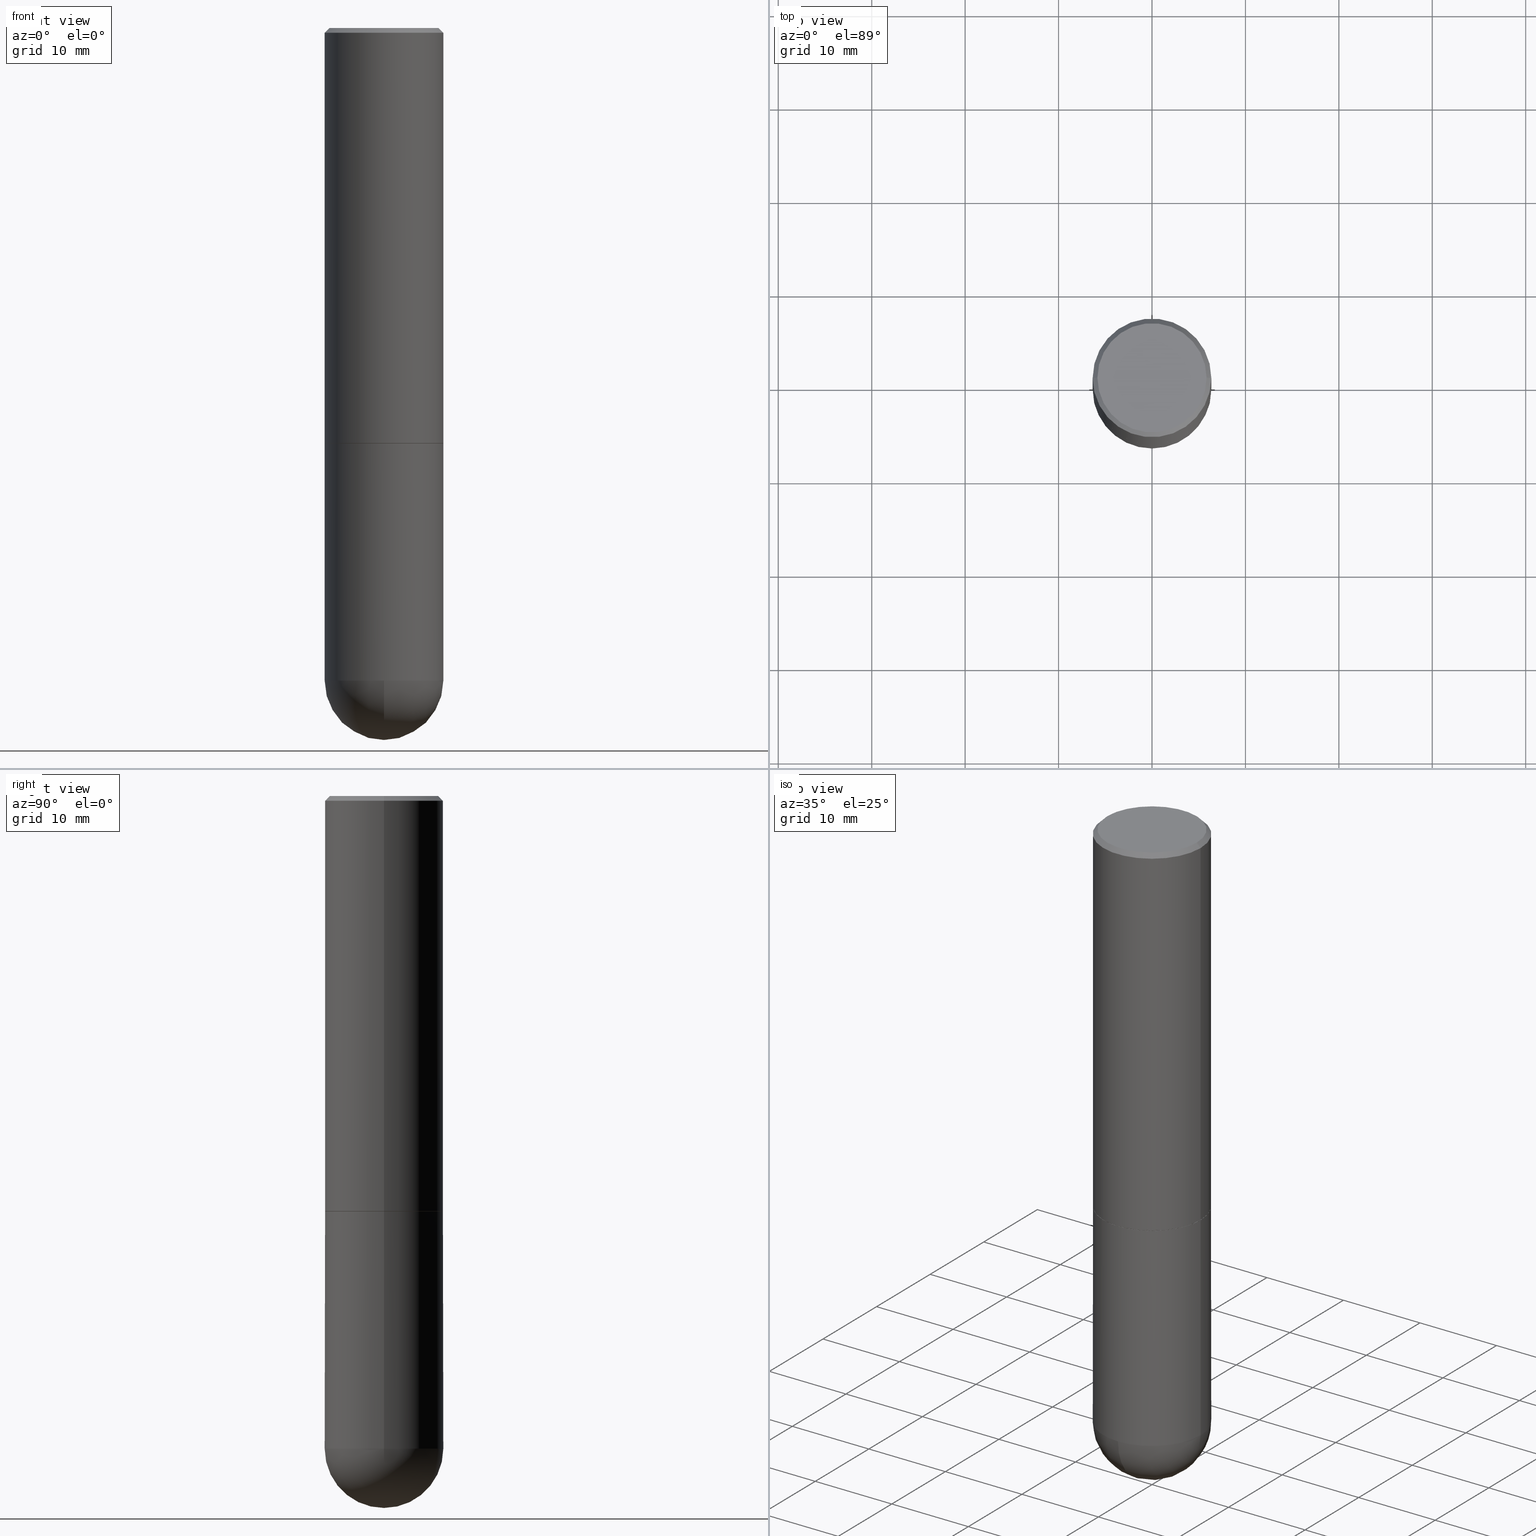
[diagram: canonical four-view strip — front | top / right | iso, engineering-drawing reading convention]
A machine part, canonical four-view strip (front | top / right | iso — engineering-drawing reading convention). The complete STEP part file that produces these views, byte-faithful:
ISO-10303-21;
HEADER;
FILE_DESCRIPTION (( 'STEP AP203' ),
    '1' );
FILE_NAME ('34924.STEP',
    '2024-02-21T18:26:37',
    ( '' ),
    ( '' ),
    'SwSTEP 2.0',
    'SolidWorks 2023',
    '' );
FILE_SCHEMA (( 'CONFIG_CONTROL_DESIGN' ));
ENDSEC;

DATA;
#1 = DIRECTION ( 'NONE',  ( -2.438088387897960049E-29, 3.491481338843145188E-15, 1.000000000000000000 ) ) ;
#2 = ORIENTED_EDGE ( 'NONE', *, *, #131, .T. ) ;
#3 = CALENDAR_DATE ( 2024, 21, 2 ) ;
#4 = CARTESIAN_POINT ( 'NONE',  ( 4.279570410823989044E-29, -6.110092342975505460E-15, -1.750000000000000222 ) ) ;
#5 = ORIENTED_EDGE ( 'NONE', *, *, #95, .T. ) ;
#6 = ADVANCED_BREP_SHAPE_REPRESENTATION ( '34924', ( #108, #379, #38 ), #175 ) ;
#7 = DIRECTION ( 'NONE',  ( 1.000000000000000000, -6.982962677686262766E-15, 0.000000000000000000 ) ) ;
#8 = ADVANCED_FACE ( 'NONE', ( #250 ), #358, .T. ) ;
#9 = CARTESIAN_POINT ( 'NONE',  ( 6.725039217009124520E-29, -9.601573681818649859E-15, -2.750000000000000000 ) ) ;
#10 = DIRECTION ( 'NONE',  ( -2.445468806185136877E-29, 3.491481338843145188E-15, 1.000000000000000000 ) ) ;
#11 = AXIS2_PLACEMENT_3D ( 'NONE', #244, #363, #225 ) ;
#12 = CARTESIAN_POINT ( 'NONE',  ( 6.393919439095240515E-29, -1.007575604995870173E-14, -2.750000000000000444 ) ) ;
#13 = ADVANCED_FACE ( 'NONE', ( #371 ), #90, .T. ) ;
#14 = EDGE_LOOP ( 'NONE', ( #30, #275, #378, #273 ) ) ;
#15 = PERSON_AND_ORGANIZATION_ROLE ( 'creator' ) ;
#16 = PRODUCT_DEFINITION_FORMATION_WITH_SPECIFIED_SOURCE ( 'ANY', '', #185, .NOT_KNOWN. ) ;
#17 = CIRCLE ( 'NONE', #45, 0.2500000000000000000 ) ;
#18 = ORIENTED_EDGE ( 'NONE', *, *, #215, .T. ) ;
#19 = CYLINDRICAL_SURFACE ( 'NONE', #381, 0.2500000000000000000 ) ;
#20 = EDGE_LOOP ( 'NONE', ( #112, #327, #282, #312 ) ) ;
#21 = CARTESIAN_POINT ( 'NONE',  ( 1.745740669421632745E-15, 0.2499999999999902300, -2.750000000000000888 ) ) ;
#22 = DIRECTION ( 'NONE',  ( 2.438088387897960049E-29, -3.491481338843145188E-15, -1.000000000000000000 ) ) ;
#23 = VERTEX_POINT ( 'NONE', #92 ) ;
#24 = VERTEX_POINT ( 'NONE', #149 ) ;
#25 = DIRECTION ( 'NONE',  ( 2.445468806185136597E-29, -3.491481338843145583E-15, -1.000000000000000000 ) ) ;
#26 = VERTEX_POINT ( 'NONE', #218 ) ;
#27 = EDGE_LOOP ( 'NONE', ( #5, #310, #278, #186 ) ) ;
#28 = COORDINATED_UNIVERSAL_TIME_OFFSET ( 5, 0, .BEHIND. ) ;
#29 = CARTESIAN_POINT ( 'NONE',  ( 4.277124942017804562E-29, -6.106600861636661664E-15, -1.749000000000000110 ) ) ;
#30 = ORIENTED_EDGE ( 'NONE', *, *, #341, .F. ) ;
#31 = AXIS2_PLACEMENT_3D ( 'NONE', #391, #107, #360 ) ;
#32 = DIRECTION ( 'NONE',  ( -2.445468806185136597E-29, 3.491481338843145583E-15, 1.000000000000000000 ) ) ;
#33 = PERSON_AND_ORGANIZATION ( #322, #314 ) ;
#34 = DIRECTION ( 'NONE',  ( 1.000000000000000000, 0.000000000000000000, 0.000000000000000000 ) ) ;
#35 = DIRECTION ( 'NONE',  ( 1.000000000000000000, -6.982962677686265922E-15, 4.879110437680772635E-29 ) ) ;
#36 = CARTESIAN_POINT ( 'NONE',  ( 0.2500000000000000000, -1.784954126219746189E-15, -0.02000000000000005593 ) ) ;
#37 = EDGE_CURVE ( 'NONE', #24, #26, #257, .T. ) ;
#38 = AXIS2_PLACEMENT_3D ( 'NONE', #320, #187, #34 ) ;
#39 = PERSON_AND_ORGANIZATION_ROLE ( 'classification_officer' ) ;
#40 = CIRCLE ( 'NONE', #135, 0.2489999999999999991 ) ;
#41 = DIRECTION ( 'NONE',  ( 1.000000000000000000, -6.982962677686266711E-15, 0.000000000000000000 ) ) ;
#42 = CALENDAR_DATE ( 2024, 21, 2 ) ;
#43 = EDGE_CURVE ( 'NONE', #298, #245, #409, .T. ) ;
#44 = AXIS2_PLACEMENT_3D ( 'NONE', #349, #398, #86 ) ;
#45 = AXIS2_PLACEMENT_3D ( 'NONE', #119, #144, #109 ) ;
#46 = FACE_OUTER_BOUND ( 'NONE', #255, .T. ) ;
#47 = COORDINATED_UNIVERSAL_TIME_OFFSET ( 5, 0, .BEHIND. ) ;
#48 = DIRECTION ( 'NONE',  ( -2.445468806185136877E-29, 3.491481338843145188E-15, 1.000000000000000000 ) ) ;
#49 = VECTOR ( 'NONE', #155, 39.37007874015748143 ) ;
#50 = ORIENTED_EDGE ( 'NONE', *, *, #74, .T. ) ;
#51 = ORIENTED_EDGE ( 'NONE', *, *, #406, .T. ) ;
#52 = LINE ( 'NONE', #308, #325 ) ;
#53 = LOCAL_TIME ( 13, 26, 37.00000000000000000, #288 ) ;
#54 = ORIENTED_EDGE ( 'NONE', *, *, #341, .T. ) ;
#55 = ORIENTED_EDGE ( 'NONE', *, *, #43, .F. ) ;
#56 = EDGE_CURVE ( 'NONE', #207, #23, #124, .T. ) ;
#57 = DIRECTION ( 'NONE',  ( -1.000000000000000000, 6.982962677686265922E-15, -4.876176775795935793E-29 ) ) ;
#58 = ORIENTED_EDGE ( 'NONE', *, *, #151, .T. ) ;
#59 = DIRECTION ( 'NONE',  ( -2.445468806185136597E-29, 3.491481338843145583E-15, 1.000000000000000000 ) ) ;
#60 = CIRCLE ( 'NONE', #295, 0.2500000000000000000 ) ;
#61 = DIRECTION ( 'NONE',  ( 1.000000000000000000, -6.982962677686266711E-15, 0.000000000000000000 ) ) ;
#62 = PERSON_AND_ORGANIZATION ( #322, #314 ) ;
#63 = LENGTH_MEASURE_WITH_UNIT ( LENGTH_MEASURE( 0.02539999999999999897 ), #263 );
#64 = DIRECTION ( 'NONE',  ( -2.445468806185136597E-29, 3.491481338843145583E-15, 1.000000000000000000 ) ) ;
#65 = EDGE_CURVE ( 'NONE', #342, #93, #230, .T. ) ;
#66 = PLANE ( 'NONE',  #402 ) ;
#67 = PERSON_AND_ORGANIZATION_ROLE ( 'creator' ) ;
#68 = AXIS2_PLACEMENT_3D ( 'NONE', #249, #211, #237 ) ;
#69 = DATE_TIME_ROLE ( 'creation_date' ) ;
#70 = APPROVAL ( #130, 'UNSPECIFIED' ) ;
#71 = DIRECTION ( 'NONE',  ( -2.445468806185136597E-29, 3.491481338843145583E-15, 1.000000000000000000 ) ) ;
#72 = LOCAL_TIME ( 13, 26, 37.00000000000000000, #251 ) ;
#73 = AXIS2_PLACEMENT_3D ( 'NONE', #192, #32, #35 ) ;
#74 = EDGE_CURVE ( 'NONE', #188, #180, #223, .T. ) ;
#75 = ORIENTED_EDGE ( 'NONE', *, *, #330, .T. ) ;
#76 = CARTESIAN_POINT ( 'NONE',  ( -0.2500000000000000000, 1.675911042644703577E-15, -0.02000000000000005593 ) ) ;
#77 = CC_DESIGN_DATE_AND_TIME_ASSIGNMENT ( #99, #194, ( #196 ) ) ;
#78 = ORIENTED_EDGE ( 'NONE', *, *, #246, .F. ) ;
#79 = FACE_OUTER_BOUND ( 'NONE', #309, .T. ) ;
#80 = CARTESIAN_POINT ( 'NONE',  ( 0.000000000000000000, 0.000000000000000000, 0.000000000000000000 ) ) ;
#81 = LINE ( 'NONE', #328, #271 ) ;
#82 = CIRCLE ( 'NONE', #170, 0.2300000000000001488 ) ;
#83 = ADVANCED_FACE ( 'NONE', ( #346 ), #158, .T. ) ;
#84 = APPLICATION_CONTEXT ( 'configuration controlled 3d designs of mechanical parts and assemblies' ) ;
#85 = CARTESIAN_POINT ( 'NONE',  ( 6.393919439095240515E-29, -1.007575604995870173E-14, -2.750000000000000444 ) ) ;
#86 = DIRECTION ( 'NONE',  ( 1.000000000000000000, -6.982962677686266711E-15, 0.000000000000000000 ) ) ;
#87 = CARTESIAN_POINT ( 'NONE',  ( 0.2500000000000002220, -7.852341531058230708E-15, -1.749000000000000110 ) ) ;
#88 = ORIENTED_EDGE ( 'NONE', *, *, #410, .T. ) ;
#89 = VECTOR ( 'NONE', #118, 39.37007874015748143 ) ;
#90 = CYLINDRICAL_SURFACE ( 'NONE', #401, 0.2500000000000001110 ) ;
#91 = DATE_AND_TIME ( #372, #72 ) ;
#92 = CARTESIAN_POINT ( 'NONE',  ( 0.2300000000000001488, -1.681434332853599997E-15, -1.365923996832016731E-16 ) ) ;
#93 = VERTEX_POINT ( 'NONE', #203 ) ;
#94 = VECTOR ( 'NONE', #10, 39.37007874015748143 ) ;
#95 = EDGE_CURVE ( 'NONE', #245, #298, #40, .T. ) ;
#96 = DIRECTION ( 'NONE',  ( 1.000000000000000000, -6.982962677686267499E-15, 4.876176775795936353E-29 ) ) ;
#97 = PERSON_AND_ORGANIZATION ( #322, #314 ) ;
#98 = DIRECTION ( 'NONE',  ( 2.445468806185136597E-29, -3.491481338843145583E-15, -1.000000000000000000 ) ) ;
#99 = DATE_AND_TIME ( #318, #262 ) ;
#100 = CARTESIAN_POINT ( 'NONE',  ( 0.000000000000000000, 0.000000000000000000, 0.000000000000000000 ) ) ;
#101 = DIRECTION ( 'NONE',  ( -1.000000000000000000, 6.982962677686266711E-15, 0.000000000000000000 ) ) ;
#102 = CARTESIAN_POINT ( 'NONE',  ( 0.2500000000000000000, -1.784954126219746189E-15, -0.02000000000000005593 ) ) ;
#103 = ADVANCED_FACE ( 'NONE', ( #46 ), #236, .T. ) ;
#104 = CARTESIAN_POINT ( 'NONE',  ( 4.279570410823989605E-29, -6.110092342975506249E-15, -1.750000000000000444 ) ) ;
#105 = EDGE_LOOP ( 'NONE', ( #117, #55 ) ) ;
#106 = CARTESIAN_POINT ( 'NONE',  ( 4.890937612370287172E-31, -6.982962677686310098E-17, -0.02000000000000005593 ) ) ;
#107 = DIRECTION ( 'NONE',  ( -2.445468806185136597E-29, 3.491481338843145583E-15, 1.000000000000000000 ) ) ;
#108 = MANIFOLD_SOLID_BREP ( 'Body-Move/Copy2[1]', #315 ) ;
#109 = DIRECTION ( 'NONE',  ( 1.000000000000000000, -6.982962677686266711E-15, 0.000000000000000000 ) ) ;
#110 = DIRECTION ( 'NONE',  ( 6.982962677686265922E-15, 1.000000000000000000, -4.370956789862818783E-15 ) ) ;
#111 = DIRECTION ( 'NONE',  ( 1.000000000000000000, -6.982962677686265922E-15, 4.883557194083112340E-29 ) ) ;
#112 = ORIENTED_EDGE ( 'NONE', *, *, #292, .F. ) ;
#113 = AXIS2_PLACEMENT_3D ( 'NONE', #365, #22, #114 ) ;
#114 = DIRECTION ( 'NONE',  ( -1.000000000000000000, 6.982962677686265922E-15, -4.876176775795935793E-29 ) ) ;
#115 = VECTOR ( 'NONE', #286, 39.37007874015748143 ) ;
#116 = AXIS2_PLACEMENT_3D ( 'NONE', #302, #248, #208 ) ;
#117 = ORIENTED_EDGE ( 'NONE', *, *, #95, .F. ) ;
#118 = DIRECTION ( 'NONE',  ( -0.7071067811865112684, 7.493145998870223209E-15, 0.7071067811865837660 ) ) ;
#119 = CARTESIAN_POINT ( 'NONE',  ( 4.279570410823989044E-29, -6.110092342975505460E-15, -1.750000000000000222 ) ) ;
#120 = ORIENTED_EDGE ( 'NONE', *, *, #351, .F. ) ;
#121 = ADVANCED_FACE ( 'NONE', ( #79 ), #189, .T. ) ;
#122 = CC_DESIGN_APPROVAL ( #70, ( #196 ) ) ;
#123 = CARTESIAN_POINT ( 'NONE',  ( 4.279570410823989605E-29, -6.110092342975506249E-15, -1.750000000000000444 ) ) ;
#124 = CIRCLE ( 'NONE', #73, 0.2300000000000001488 ) ;
#125 = PERSON_AND_ORGANIZATION_ROLE ( 'design_owner' ) ;
#126 = ORIENTED_EDGE ( 'NONE', *, *, #179, .F. ) ;
#127 = EDGE_CURVE ( 'NONE', #24, #93, #253, .T. ) ;
#128 = SHAPE_DEFINITION_REPRESENTATION ( #224, #6 ) ;
#129 = DIRECTION ( 'NONE',  ( -2.445468806185136597E-29, 3.491481338843145583E-15, 1.000000000000000000 ) ) ;
#130 = APPROVAL_STATUS ( 'not_yet_approved' ) ;
#131 = EDGE_CURVE ( 'NONE', #23, #407, #193, .T. ) ;
#132 = DIRECTION ( 'NONE',  ( -2.445468806185136597E-29, 3.491481338843145583E-15, 1.000000000000000000 ) ) ;
#133 = AXIS2_PLACEMENT_3D ( 'NONE', #261, #229, #7 ) ;
#134 = LOCAL_TIME ( 13, 26, 37.00000000000000000, #28 ) ;
#135 = AXIS2_PLACEMENT_3D ( 'NONE', #104, #303, #388 ) ;
#136 = PRODUCT_DEFINITION ( 'UNKNOWN', '', #16, #376 ) ;
#137 = APPROVAL_DATE_TIME ( #294, #326 ) ;
#138 = CONICAL_SURFACE ( 'NONE', #369, 0.2500000000000000000, 0.7853981633974467247 ) ;
#139 = EDGE_LOOP ( 'NONE', ( #146, #204 ) ) ;
#140 = EDGE_CURVE ( 'NONE', #23, #207, #82, .T. ) ;
#141 = DIRECTION ( 'NONE',  ( 6.982962677686265922E-15, 1.000000000000000000, -4.370956789862818783E-15 ) ) ;
#142 = EDGE_LOOP ( 'NONE', ( #78, #50, #88, #200 ) ) ;
#143 = CARTESIAN_POINT ( 'NONE',  ( -0.2489999999999999991, -4.340840930932856792E-15, -1.750000000000000444 ) ) ;
#144 = DIRECTION ( 'NONE',  ( -2.445468806185136597E-29, 3.491481338843145583E-15, 1.000000000000000000 ) ) ;
#145 = AXIS2_PLACEMENT_3D ( 'NONE', #221, #59, #289 ) ;
#146 = ORIENTED_EDGE ( 'NONE', *, *, #56, .T. ) ;
#147 = APPROVAL_ROLE ( '' ) ;
#148 = ADVANCED_FACE ( 'NONE', ( #227 ), #66, .F. ) ;
#149 = CARTESIAN_POINT ( 'NONE',  ( -0.2500000000000000000, -6.079476172996828773E-15, -2.750000000000000000 ) ) ;
#150 = CIRCLE ( 'NONE', #386, 0.2500000000000000000 ) ;
#151 = EDGE_CURVE ( 'NONE', #180, #188, #243, .T. ) ;
#152 = DIRECTION ( 'NONE',  ( -1.000000000000000000, 7.105427357601001070E-15, -4.926315508542082329E-29 ) ) ;
#153 = APPROVAL_ROLE ( '' ) ;
#154 = CARTESIAN_POINT ( 'NONE',  ( 4.277124942017804562E-29, -6.106600861636661664E-15, -1.749000000000000110 ) ) ;
#155 = DIRECTION ( 'NONE',  ( 0.7071067811865464625, -7.319954787623252890E-15, -0.7071067811865486830 ) ) ;
#156 =( NAMED_UNIT ( * ) SI_UNIT ( $, .STERADIAN. ) SOLID_ANGLE_UNIT ( ) );
#157 = CC_DESIGN_SECURITY_CLASSIFICATION ( #196, ( #16 ) ) ;
#158 = CYLINDRICAL_SURFACE ( 'NONE', #220, 0.2500000000000000000 ) ;
#159 = APPROVAL ( #256, 'UNSPECIFIED' ) ;
#160 = SPHERICAL_SURFACE ( 'NONE', #161, 0.2500000000000001110 ) ;
#161 = AXIS2_PLACEMENT_3D ( 'NONE', #12, #234, #141 ) ;
#162 = ADVANCED_FACE ( 'NONE', ( #411 ), #160, .T. ) ;
#163 = DIRECTION ( 'NONE',  ( -2.445468806185136877E-29, 3.491481338843145188E-15, 1.000000000000000000 ) ) ;
#164 = DIMENSIONAL_EXPONENTS ( 1.000000000000000000, 0.000000000000000000, 0.000000000000000000, 0.000000000000000000, 0.000000000000000000, 0.000000000000000000, 0.000000000000000000 ) ;
#165 = CARTESIAN_POINT ( 'NONE',  ( -0.2489999999999999991, -4.335542476584633601E-15, -1.750000000000000444 ) ) ;
#166 = EDGE_LOOP ( 'NONE', ( #58, #279, #374, #364 ) ) ;
#167 = DIRECTION ( 'NONE',  ( -1.000000000000000000, 6.982962677686265922E-15, -4.883557194083113462E-29 ) ) ;
#168 = APPROVAL_PERSON_ORGANIZATION ( #181, #159, #147 ) ;
#169 = EDGE_CURVE ( 'NONE', #304, #407, #324, .T. ) ;
#170 = AXIS2_PLACEMENT_3D ( 'NONE', #383, #291, #265 ) ;
#171 = ORIENTED_EDGE ( 'NONE', *, *, #276, .F. ) ;
#172 = EDGE_LOOP ( 'NONE', ( #18, #354, #222, #171, #336 ) ) ;
#173 = APPROVAL_DATE_TIME ( #91, #159 ) ;
#174 = CARTESIAN_POINT ( 'NONE',  ( 0.2500000000000001110, -1.745740669421567664E-15, 1.219044193948984649E-29 ) ) ;
#175 =( GEOMETRIC_REPRESENTATION_CONTEXT ( 3 ) GLOBAL_UNCERTAINTY_ASSIGNED_CONTEXT ( ( #182 ) ) GLOBAL_UNIT_ASSIGNED_CONTEXT ( ( #217, #191, #156 ) ) REPRESENTATION_CONTEXT ( 'NONE', 'WORKASPACE' ) );
#176 = APPROVAL_STATUS ( 'not_yet_approved' ) ;
#177 = CARTESIAN_POINT ( 'NONE',  ( -0.2500000000000000000, 1.675911042644703577E-15, -0.02000000000000005593 ) ) ;
#178 = CARTESIAN_POINT ( 'NONE',  ( -0.2500000000000002220, -1.311858404806509058E-15, -1.749000000000000110 ) ) ;
#179 = EDGE_CURVE ( 'NONE', #26, #183, #17, .T. ) ;
#180 = VERTEX_POINT ( 'NONE', #87 ) ;
#181 = PERSON_AND_ORGANIZATION ( #322, #314 ) ;
#182 = UNCERTAINTY_MEASURE_WITH_UNIT (LENGTH_MEASURE( 1.000000000000000082E-05 ), #217, 'distance_accuracy_value', 'NONE');
#183 = VERTEX_POINT ( 'NONE', #239 ) ;
#184 = CC_DESIGN_PERSON_AND_ORGANIZATION_ASSIGNMENT ( #33, #39, ( #196 ) ) ;
#185 = PRODUCT ( '34924', '34924', '', ( #373 ) ) ;
#186 = ORIENTED_EDGE ( 'NONE', *, *, #366, .F. ) ;
#187 = DIRECTION ( 'NONE',  ( 0.000000000000000000, 0.000000000000000000, 1.000000000000000000 ) ) ;
#188 = VERTEX_POINT ( 'NONE', #178 ) ;
#189 = CONICAL_SURFACE ( 'NONE', #240, 0.2500000000000000000, 0.7853981633974467247 ) ;
#190 = SECURITY_CLASSIFICATION_LEVEL ( 'unclassified' ) ;
#191 =( NAMED_UNIT ( * ) PLANE_ANGLE_UNIT ( ) SI_UNIT ( $, .RADIAN. ) );
#192 = CARTESIAN_POINT ( 'NONE',  ( 3.340324525872703422E-45, -4.769098145217431040E-31, -1.365923996832131609E-16 ) ) ;
#193 = LINE ( 'NONE', #36, #49 ) ;
#194 = DATE_TIME_ROLE ( 'classification_date' ) ;
#195 = CARTESIAN_POINT ( 'NONE',  ( 0.2500000000000000000, -1.745740669421566678E-15, 1.219044193948983948E-29 ) ) ;
#196 = SECURITY_CLASSIFICATION ( '', '', #190 ) ;
#197 = AXIS2_PLACEMENT_3D ( 'NONE', #154, #264, #226 ) ;
#198 = PRODUCT_RELATED_PRODUCT_CATEGORY ( 'detail', '', ( #185 ) ) ;
#199 = AXIS2_PLACEMENT_3D ( 'NONE', #394, #167, #110 ) ;
#200 = ORIENTED_EDGE ( 'NONE', *, *, #169, .F. ) ;
#201 = CARTESIAN_POINT ( 'NONE',  ( 7.015976219256266741E-29, -1.093331829968014633E-14, -3.000000000000000888 ) ) ;
#202 = CARTESIAN_POINT ( 'NONE',  ( 0.2489999999999999991, -7.848850049719386123E-15, -1.750000000000000444 ) ) ;
#203 = CARTESIAN_POINT ( 'NONE',  ( -1.776356839400184989E-15, -0.2500000000000098810, -2.749999999999998668 ) ) ;
#204 = ORIENTED_EDGE ( 'NONE', *, *, #140, .T. ) ;
#205 = CIRCLE ( 'NONE', #31, 0.2500000000000000000 ) ;
#206 = DIRECTION ( 'NONE',  ( 0.7071067811865112684, -2.468850131081876830E-15, 0.7071067811865837660 ) ) ;
#207 = VERTEX_POINT ( 'NONE', #396 ) ;
#208 = DIRECTION ( 'NONE',  ( 1.000000000000000000, -6.982962677686262766E-15, 0.000000000000000000 ) ) ;
#209 = CC_DESIGN_PERSON_AND_ORGANIZATION_ASSIGNMENT ( #284, #125, ( #185 ) ) ;
#210 = ORIENTED_EDGE ( 'NONE', *, *, #276, .T. ) ;
#211 = DIRECTION ( 'NONE',  ( -2.445468806185136597E-29, 3.491481338843145583E-15, 1.000000000000000000 ) ) ;
#212 = ORIENTED_EDGE ( 'NONE', *, *, #290, .T. ) ;
#213 = CARTESIAN_POINT ( 'NONE',  ( 1.606081415867842251E-15, 0.2300000000000001488, -8.713369077755306147E-16 ) ) ;
#214 = CARTESIAN_POINT ( 'NONE',  ( 0.000000000000000000, 0.000000000000000000, 0.000000000000000000 ) ) ;
#215 = EDGE_CURVE ( 'NONE', #357, #24, #277, .T. ) ;
#216 = FACE_OUTER_BOUND ( 'NONE', #142, .T. ) ;
#217 =( CONVERSION_BASED_UNIT ( 'INCH', #63 ) LENGTH_UNIT ( ) NAMED_UNIT ( #164 ) );
#218 = CARTESIAN_POINT ( 'NONE',  ( -0.2500000000000000000, -6.079476172996827195E-15, -1.750000000000000222 ) ) ;
#219 = COORDINATED_UNIVERSAL_TIME_OFFSET ( 5, 0, .BEHIND. ) ;
#220 = AXIS2_PLACEMENT_3D ( 'NONE', #100, #71, #387 ) ;
#221 = CARTESIAN_POINT ( 'NONE',  ( 0.000000000000000000, 0.000000000000000000, 0.000000000000000000 ) ) ;
#222 = ORIENTED_EDGE ( 'NONE', *, *, #330, .F. ) ;
#223 = CIRCLE ( 'NONE', #197, 0.2500000000000002220 ) ;
#224 = PRODUCT_DEFINITION_SHAPE ( 'NONE', 'NONE',  #136 ) ;
#225 = DIRECTION ( 'NONE',  ( 1.000000000000000000, -6.982962677686266711E-15, 0.000000000000000000 ) ) ;
#226 = DIRECTION ( 'NONE',  ( 1.000000000000000000, -6.982962677686268288E-15, 0.000000000000000000 ) ) ;
#227 = FACE_OUTER_BOUND ( 'NONE', #105, .T. ) ;
#228 = APPROVAL_DATE_TIME ( #343, #70 ) ;
#229 = DIRECTION ( 'NONE',  ( -2.445468806185136597E-29, 3.491481338843145583E-15, 1.000000000000000000 ) ) ;
#230 = CIRCLE ( 'NONE', #313, 0.2500000000000001110 ) ;
#231 = EDGE_CURVE ( 'NONE', #207, #304, #352, .T. ) ;
#232 = LINE ( 'NONE', #174, #368 ) ;
#233 = CC_DESIGN_APPROVAL ( #159, ( #16 ) ) ;
#234 = DIRECTION ( 'NONE',  ( -1.000000000000000000, 6.982962677686265922E-15, -4.883557194083113462E-29 ) ) ;
#235 = ORIENTED_EDGE ( 'NONE', *, *, #65, .F. ) ;
#236 = SPHERICAL_SURFACE ( 'NONE', #199, 0.2500000000000001110 ) ;
#237 = DIRECTION ( 'NONE',  ( 1.000000000000000000, -6.982962677686262766E-15, 0.000000000000000000 ) ) ;
#238 = EDGE_LOOP ( 'NONE', ( #393, #311, #51, #210, #126 ) ) ;
#239 = CARTESIAN_POINT ( 'NONE',  ( 0.2500000000000000000, -7.855833012397072137E-15, -1.750000000000000222 ) ) ;
#240 = AXIS2_PLACEMENT_3D ( 'NONE', #106, #98, #101 ) ;
#241 = APPROVAL_PERSON_ORGANIZATION ( #334, #326, #280 ) ;
#242 = FACE_OUTER_BOUND ( 'NONE', #397, .T. ) ;
#243 = CIRCLE ( 'NONE', #297, 0.2500000000000002220 ) ;
#244 = CARTESIAN_POINT ( 'NONE',  ( 4.279570410823989605E-29, -6.110092342975506249E-15, -1.750000000000000444 ) ) ;
#245 = VERTEX_POINT ( 'NONE', #202 ) ;
#246 = EDGE_CURVE ( 'NONE', #188, #304, #81, .T. ) ;
#247 = ORIENTED_EDGE ( 'NONE', *, *, #231, .F. ) ;
#248 = DIRECTION ( 'NONE',  ( -2.445468806185136597E-29, 3.491481338843145583E-15, 1.000000000000000000 ) ) ;
#249 = CARTESIAN_POINT ( 'NONE',  ( 6.725039217009124520E-29, -9.601573681818649859E-15, -2.750000000000000000 ) ) ;
#250 = FACE_OUTER_BOUND ( 'NONE', #20, .T. ) ;
#251 = COORDINATED_UNIVERSAL_TIME_OFFSET ( 5, 0, .BEHIND. ) ;
#252 = CARTESIAN_POINT ( 'NONE',  ( 0.2500000000000000000, -9.601573681818646704E-15, -2.750000000000000000 ) ) ;
#253 = CIRCLE ( 'NONE', #133, 0.2500000000000000000 ) ;
#254 = ADVANCED_FACE ( 'NONE', ( #216 ), #338, .T. ) ;
#255 = EDGE_LOOP ( 'NONE', ( #235, #54, #120, #361 ) ) ;
#256 = APPROVAL_STATUS ( 'not_yet_approved' ) ;
#257 = LINE ( 'NONE', #321, #115 ) ;
#258 = PERSON_AND_ORGANIZATION_ROLE ( 'design_supplier' ) ;
#259 = APPLICATION_PROTOCOL_DEFINITION ( 'international standard', 'config_control_design', 1994, #84 ) ;
#260 = CARTESIAN_POINT ( 'NONE',  ( 6.393919439095240515E-29, -1.007575604995870173E-14, -2.750000000000000444 ) ) ;
#261 = CARTESIAN_POINT ( 'NONE',  ( 6.725039217009124520E-29, -9.601573681818649859E-15, -2.750000000000000000 ) ) ;
#262 = LOCAL_TIME ( 13, 26, 37.00000000000000000, #219 ) ;
#263 =( LENGTH_UNIT ( ) NAMED_UNIT ( * ) SI_UNIT ( $, .METRE. ) );
#264 = DIRECTION ( 'NONE',  ( -2.445468806185136597E-29, 3.491481338843145583E-15, 1.000000000000000000 ) ) ;
#265 = DIRECTION ( 'NONE',  ( 1.000000000000000000, -6.982962677686265922E-15, 4.879110437680772635E-29 ) ) ;
#266 = CC_DESIGN_PERSON_AND_ORGANIZATION_ASSIGNMENT ( #300, #15, ( #136 ) ) ;
#267 = ADVANCED_FACE ( 'NONE', ( #281 ), #344, .F. ) ;
#268 = CLOSED_SHELL ( 'NONE', ( #392, #13, #319, #121, #254, #8, #148, #267 ) ) ;
#269 = AXIS2_PLACEMENT_3D ( 'NONE', #85, #111, #362 ) ;
#270 = DIRECTION ( 'NONE',  ( -2.445468806185136597E-29, 3.491481338843145583E-15, 1.000000000000000000 ) ) ;
#271 = VECTOR ( 'NONE', #48, 39.37007874015748143 ) ;
#272 = CARTESIAN_POINT ( 'NONE',  ( 4.890937612370287172E-31, -6.982962677686310098E-17, -0.02000000000000005593 ) ) ;
#273 = ORIENTED_EDGE ( 'NONE', *, *, #215, .F. ) ;
#274 = DATE_AND_TIME ( #350, #296 ) ;
#275 = ORIENTED_EDGE ( 'NONE', *, *, #65, .T. ) ;
#276 = EDGE_CURVE ( 'NONE', #405, #183, #293, .T. ) ;
#277 = CIRCLE ( 'NONE', #68, 0.2500000000000000000 ) ;
#278 = ORIENTED_EDGE ( 'NONE', *, *, #151, .F. ) ;
#279 = ORIENTED_EDGE ( 'NONE', *, *, #246, .T. ) ;
#280 = APPROVAL_ROLE ( '' ) ;
#281 = FACE_OUTER_BOUND ( 'NONE', #139, .T. ) ;
#282 = ORIENTED_EDGE ( 'NONE', *, *, #366, .T. ) ;
#283 = AXIS2_PLACEMENT_3D ( 'NONE', #213, #337, #57 ) ;
#284 = PERSON_AND_ORGANIZATION ( #322, #314 ) ;
#285 = DIRECTION ( 'NONE',  ( -2.445468806185136597E-29, 3.491481338843145583E-15, 1.000000000000000000 ) ) ;
#286 = DIRECTION ( 'NONE',  ( -2.445468806185136877E-29, 3.491481338843145188E-15, 1.000000000000000000 ) ) ;
#287 = DIRECTION ( 'NONE',  ( -7.105427357601001859E-15, -1.000000000000000000, 0.000000000000000000 ) ) ;
#288 = COORDINATED_UNIVERSAL_TIME_OFFSET ( 5, 0, .BEHIND. ) ;
#289 = DIRECTION ( 'NONE',  ( 1.000000000000000000, -6.982962677686267499E-15, 4.876176775795936353E-29 ) ) ;
#290 = EDGE_CURVE ( 'NONE', #407, #304, #150, .T. ) ;
#291 = DIRECTION ( 'NONE',  ( -2.445468806185136597E-29, 3.491481338843145583E-15, 1.000000000000000000 ) ) ;
#292 = EDGE_CURVE ( 'NONE', #298, #188, #385, .T. ) ;
#293 = LINE ( 'NONE', #195, #94 ) ;
#294 = DATE_AND_TIME ( #42, #134 ) ;
#295 = AXIS2_PLACEMENT_3D ( 'NONE', #9, #270, #384 ) ;
#296 = LOCAL_TIME ( 13, 26, 37.00000000000000000, #47 ) ;
#297 = AXIS2_PLACEMENT_3D ( 'NONE', #29, #285, #377 ) ;
#298 = VERTEX_POINT ( 'NONE', #165 ) ;
#299 = CC_DESIGN_DATE_AND_TIME_ASSIGNMENT ( #274, #69, ( #136 ) ) ;
#300 = PERSON_AND_ORGANIZATION ( #322, #314 ) ;
#301 = VECTOR ( 'NONE', #335, 39.37007874015748143 ) ;
#302 = CARTESIAN_POINT ( 'NONE',  ( 6.725039217009124520E-29, -9.601573681818649859E-15, -2.750000000000000000 ) ) ;
#303 = DIRECTION ( 'NONE',  ( -2.445468806185136597E-29, 3.491481338843145583E-15, 1.000000000000000000 ) ) ;
#304 = VERTEX_POINT ( 'NONE', #177 ) ;
#305 = APPLICATION_CONTEXT ( 'configuration controlled 3d designs of mechanical parts and assemblies' ) ;
#306 = PLANE ( 'NONE',  #113 ) ;
#307 = ORIENTED_EDGE ( 'NONE', *, *, #231, .T. ) ;
#308 = CARTESIAN_POINT ( 'NONE',  ( 0.2489999999999999991, -7.848850049719386123E-15, -1.750000000000000444 ) ) ;
#309 = EDGE_LOOP ( 'NONE', ( #329, #367, #307, #400 ) ) ;
#310 = ORIENTED_EDGE ( 'NONE', *, *, #292, .T. ) ;
#311 = ORIENTED_EDGE ( 'NONE', *, *, #127, .T. ) ;
#312 = ORIENTED_EDGE ( 'NONE', *, *, #74, .F. ) ;
#313 = AXIS2_PLACEMENT_3D ( 'NONE', #260, #152, #287 ) ;
#314 = ORGANIZATION ( 'UNSPECIFIED', 'UNSPECIFIED', '' ) ;
#315 = CLOSED_SHELL ( 'NONE', ( #83, #162, #103, #375, #353 ) ) ;
#316 = CIRCLE ( 'NONE', #269, 0.2500000000000001110 ) ;
#317 = DIRECTION ( 'NONE',  ( 1.000000000000000000, -6.982962677686266711E-15, 0.000000000000000000 ) ) ;
#318 = CALENDAR_DATE ( 2024, 21, 2 ) ;
#319 = ADVANCED_FACE ( 'NONE', ( #242 ), #138, .T. ) ;
#320 = CARTESIAN_POINT ( 'NONE',  ( 0.000000000000000000, 0.000000000000000000, 0.000000000000000000 ) ) ;
#321 = CARTESIAN_POINT ( 'NONE',  ( -0.2500000000000000000, 1.776356839400250465E-15, -1.229733772563726445E-29 ) ) ;
#322 = PERSON ( 'UNSPECIFIED', 'UNSPECIFIED', 'UNSPECIFIED', ('UNSPECIFIED'), ('UNSPECIFIED'), ('UNSPECIFIED') ) ;
#323 = CARTESIAN_POINT ( 'NONE',  ( 4.890937612370287172E-31, -6.982962677686310098E-17, -0.02000000000000005593 ) ) ;
#324 = CIRCLE ( 'NONE', #44, 0.2500000000000000000 ) ;
#325 = VECTOR ( 'NONE', #206, 39.37007874015748143 ) ;
#326 = APPROVAL ( #176, 'UNSPECIFIED' ) ;
#327 = ORIENTED_EDGE ( 'NONE', *, *, #43, .T. ) ;
#328 = CARTESIAN_POINT ( 'NONE',  ( -0.2500000000000001110, 1.776356839400251254E-15, -1.229733772563727146E-29 ) ) ;
#329 = ORIENTED_EDGE ( 'NONE', *, *, #131, .F. ) ;
#330 = EDGE_CURVE ( 'NONE', #183, #26, #205, .T. ) ;
#331 = DIRECTION ( 'NONE',  ( 1.000000000000000000, -6.982962677686266711E-15, 4.876176775795935793E-29 ) ) ;
#332 = FACE_OUTER_BOUND ( 'NONE', #382, .T. ) ;
#333 = DIRECTION ( 'NONE',  ( -2.445468806185136597E-29, 3.491481338843145583E-15, 1.000000000000000000 ) ) ;
#334 = PERSON_AND_ORGANIZATION ( #322, #314 ) ;
#335 = DIRECTION ( 'NONE',  ( -0.7071067811865464625, 2.468850131082245228E-15, -0.7071067811865486830 ) ) ;
#336 = ORIENTED_EDGE ( 'NONE', *, *, #351, .T. ) ;
#337 = DIRECTION ( 'NONE',  ( 2.438088387897960049E-29, -3.491481338843145188E-15, -1.000000000000000000 ) ) ;
#338 = CYLINDRICAL_SURFACE ( 'NONE', #145, 0.2500000000000001110 ) ;
#339 = DIRECTION ( 'NONE',  ( -2.445468806185136597E-29, 3.491481338843145583E-15, 1.000000000000000000 ) ) ;
#340 = PERSON_AND_ORGANIZATION ( #322, #314 ) ;
#341 = EDGE_CURVE ( 'NONE', #342, #357, #316, .T. ) ;
#342 = VERTEX_POINT ( 'NONE', #201 ) ;
#343 = DATE_AND_TIME ( #3, #53 ) ;
#344 = PLANE ( 'NONE',  #283 ) ;
#345 = APPLICATION_PROTOCOL_DEFINITION ( 'international standard', 'config_control_design', 1994, #305 ) ;
#346 = FACE_OUTER_BOUND ( 'NONE', #172, .T. ) ;
#347 = CC_DESIGN_APPROVAL ( #326, ( #136 ) ) ;
#348 = CC_DESIGN_PERSON_AND_ORGANIZATION_ASSIGNMENT ( #62, #67, ( #16 ) ) ;
#349 = CARTESIAN_POINT ( 'NONE',  ( 4.890937612370287172E-31, -6.982962677686310098E-17, -0.02000000000000005593 ) ) ;
#350 = CALENDAR_DATE ( 2024, 21, 2 ) ;
#351 = EDGE_CURVE ( 'NONE', #405, #357, #359, .T. ) ;
#352 = LINE ( 'NONE', #76, #301 ) ;
#353 = ADVANCED_FACE ( 'NONE', ( #395 ), #19, .T. ) ;
#354 = ORIENTED_EDGE ( 'NONE', *, *, #37, .T. ) ;
#355 = CONICAL_SURFACE ( 'NONE', #11, 0.2489999999999999991, 0.7853981633973970977 ) ;
#356 = APPROVAL_PERSON_ORGANIZATION ( #97, #70, #153 ) ;
#357 = VERTEX_POINT ( 'NONE', #21 ) ;
#358 = CONICAL_SURFACE ( 'NONE', #380, 0.2489999999999999991, 0.7853981633973970977 ) ;
#359 = CIRCLE ( 'NONE', #116, 0.2500000000000000000 ) ;
#360 = DIRECTION ( 'NONE',  ( 1.000000000000000000, -6.982962677686266711E-15, 0.000000000000000000 ) ) ;
#361 = ORIENTED_EDGE ( 'NONE', *, *, #406, .F. ) ;
#362 = DIRECTION ( 'NONE',  ( 6.982962677686266711E-15, 1.000000000000000000, 0.000000000000000000 ) ) ;
#363 = DIRECTION ( 'NONE',  ( -2.445468806185136597E-29, 3.491481338843145583E-15, 1.000000000000000000 ) ) ;
#364 = ORIENTED_EDGE ( 'NONE', *, *, #410, .F. ) ;
#365 = CARTESIAN_POINT ( 'NONE',  ( 1.745740669421609079E-15, 0.2499999999999938938, -1.750000000000001110 ) ) ;
#366 = EDGE_CURVE ( 'NONE', #245, #180, #52, .T. ) ;
#367 = ORIENTED_EDGE ( 'NONE', *, *, #56, .F. ) ;
#368 = VECTOR ( 'NONE', #163, 39.37007874015748143 ) ;
#369 = AXIS2_PLACEMENT_3D ( 'NONE', #272, #25, #403 ) ;
#370 = DIRECTION ( 'NONE',  ( 1.000000000000000000, -6.982962677686265922E-15, 4.876176775795935793E-29 ) ) ;
#371 = FACE_OUTER_BOUND ( 'NONE', #166, .T. ) ;
#372 = CALENDAR_DATE ( 2024, 21, 2 ) ;
#373 = MECHANICAL_CONTEXT ( 'NONE', #305, 'mechanical' ) ;
#374 = ORIENTED_EDGE ( 'NONE', *, *, #290, .F. ) ;
#375 = ADVANCED_FACE ( 'NONE', ( #332 ), #306, .F. ) ;
#376 = DESIGN_CONTEXT ( 'detailed design', #84, 'design' ) ;
#377 = DIRECTION ( 'NONE',  ( 1.000000000000000000, -6.982962677686268288E-15, 0.000000000000000000 ) ) ;
#378 = ORIENTED_EDGE ( 'NONE', *, *, #127, .F. ) ;
#379 = MANIFOLD_SOLID_BREP ( 'Body-Move/Copy2[2]', #268 ) ;
#380 = AXIS2_PLACEMENT_3D ( 'NONE', #123, #64, #61 ) ;
#381 = AXIS2_PLACEMENT_3D ( 'NONE', #80, #333, #331 ) ;
#382 = EDGE_LOOP ( 'NONE', ( #75, #408 ) ) ;
#383 = CARTESIAN_POINT ( 'NONE',  ( 3.340324525872703422E-45, -4.769098145217431040E-31, -1.365923996832131609E-16 ) ) ;
#384 = DIRECTION ( 'NONE',  ( 1.000000000000000000, -6.982962677686262766E-15, 0.000000000000000000 ) ) ;
#385 = LINE ( 'NONE', #143, #89 ) ;
#386 = AXIS2_PLACEMENT_3D ( 'NONE', #323, #132, #41 ) ;
#387 = DIRECTION ( 'NONE',  ( 1.000000000000000000, -6.982962677686266711E-15, 4.876176775795935793E-29 ) ) ;
#388 = DIRECTION ( 'NONE',  ( 1.000000000000000000, -6.982962677686266711E-15, 0.000000000000000000 ) ) ;
#389 = CC_DESIGN_PERSON_AND_ORGANIZATION_ASSIGNMENT ( #340, #258, ( #16 ) ) ;
#390 = ORIENTED_EDGE ( 'NONE', *, *, #140, .F. ) ;
#391 = CARTESIAN_POINT ( 'NONE',  ( 4.279570410823989044E-29, -6.110092342975505460E-15, -1.750000000000000222 ) ) ;
#392 = ADVANCED_FACE ( 'NONE', ( #404 ), #355, .T. ) ;
#393 = ORIENTED_EDGE ( 'NONE', *, *, #37, .F. ) ;
#394 = CARTESIAN_POINT ( 'NONE',  ( 6.393919439095240515E-29, -1.007575604995870173E-14, -2.750000000000000444 ) ) ;
#395 = FACE_OUTER_BOUND ( 'NONE', #238, .T. ) ;
#396 = CARTESIAN_POINT ( 'NONE',  ( -0.2300000000000001488, 1.640996229256272716E-15, -1.365923996832245008E-16 ) ) ;
#397 = EDGE_LOOP ( 'NONE', ( #390, #2, #212, #247 ) ) ;
#398 = DIRECTION ( 'NONE',  ( -2.445468806185136597E-29, 3.491481338843145583E-15, 1.000000000000000000 ) ) ;
#399 = AXIS2_PLACEMENT_3D ( 'NONE', #412, #339, #317 ) ;
#400 = ORIENTED_EDGE ( 'NONE', *, *, #169, .T. ) ;
#401 = AXIS2_PLACEMENT_3D ( 'NONE', #214, #129, #96 ) ;
#402 = AXIS2_PLACEMENT_3D ( 'NONE', #4, #1, #370 ) ;
#403 = DIRECTION ( 'NONE',  ( -1.000000000000000000, 6.982962677686266711E-15, 0.000000000000000000 ) ) ;
#404 = FACE_OUTER_BOUND ( 'NONE', #27, .T. ) ;
#405 = VERTEX_POINT ( 'NONE', #252 ) ;
#406 = EDGE_CURVE ( 'NONE', #93, #405, #60, .T. ) ;
#407 = VERTEX_POINT ( 'NONE', #102 ) ;
#408 = ORIENTED_EDGE ( 'NONE', *, *, #179, .T. ) ;
#409 = CIRCLE ( 'NONE', #399, 0.2489999999999999991 ) ;
#410 = EDGE_CURVE ( 'NONE', #180, #407, #232, .T. ) ;
#411 = FACE_OUTER_BOUND ( 'NONE', #14, .T. ) ;
#412 = CARTESIAN_POINT ( 'NONE',  ( 4.279570410823989605E-29, -6.110092342975506249E-15, -1.750000000000000444 ) ) ;
ENDSEC;
END-ISO-10303-21;
